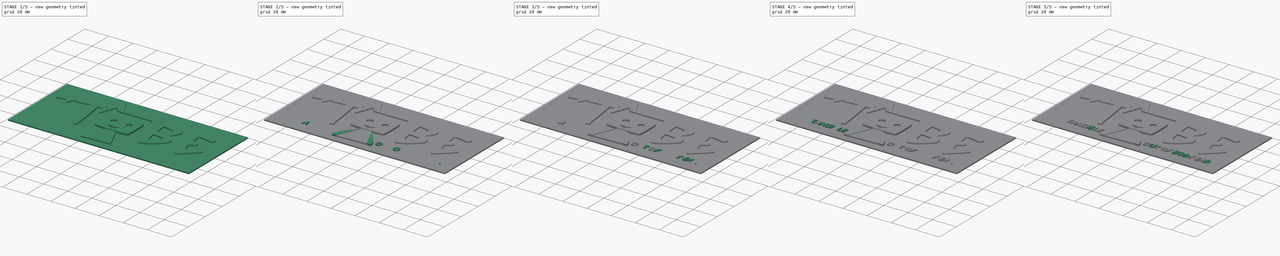
[diagram: build sequence overview — one tinted view per stage of 5, left to right]
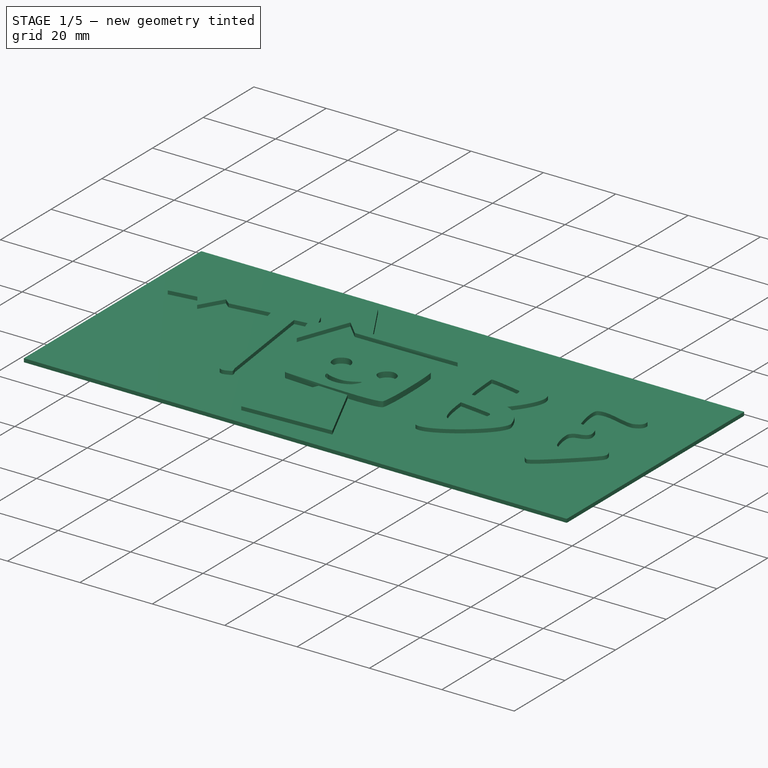
[diagram: stage 1 of 5 — iso view after this stage's code; geometry added in this stage tinted green]
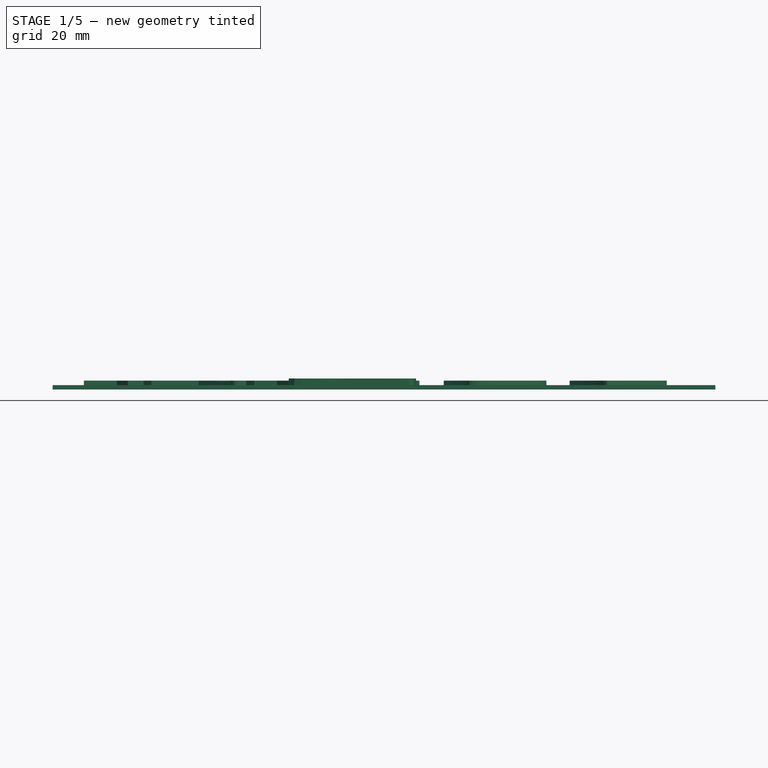
[diagram: stage 1 of 5 — front view after this stage's code; geometry added in this stage tinted green]
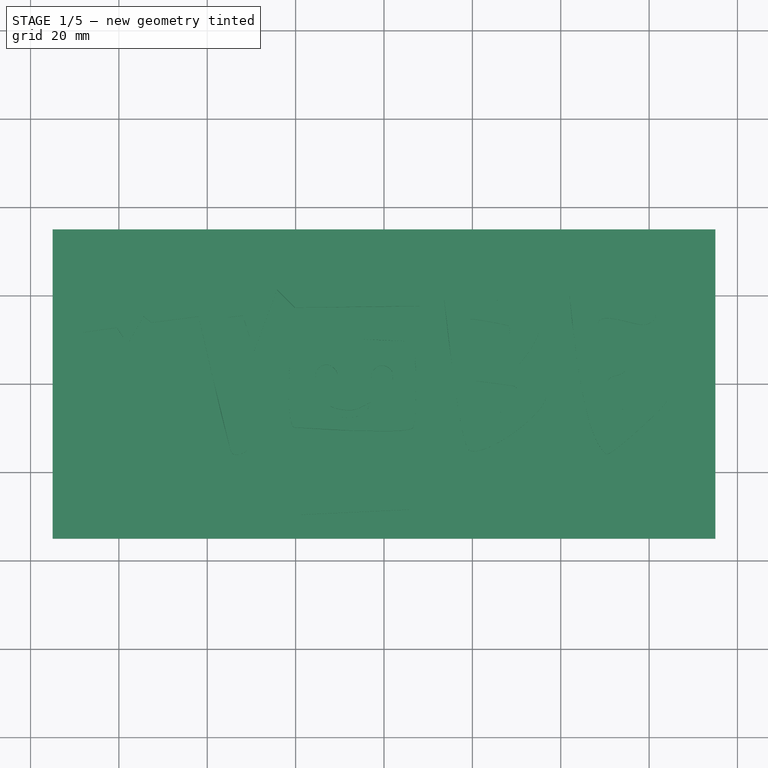
[diagram: stage 1 of 5 — top view after this stage's code; geometry added in this stage tinted green]
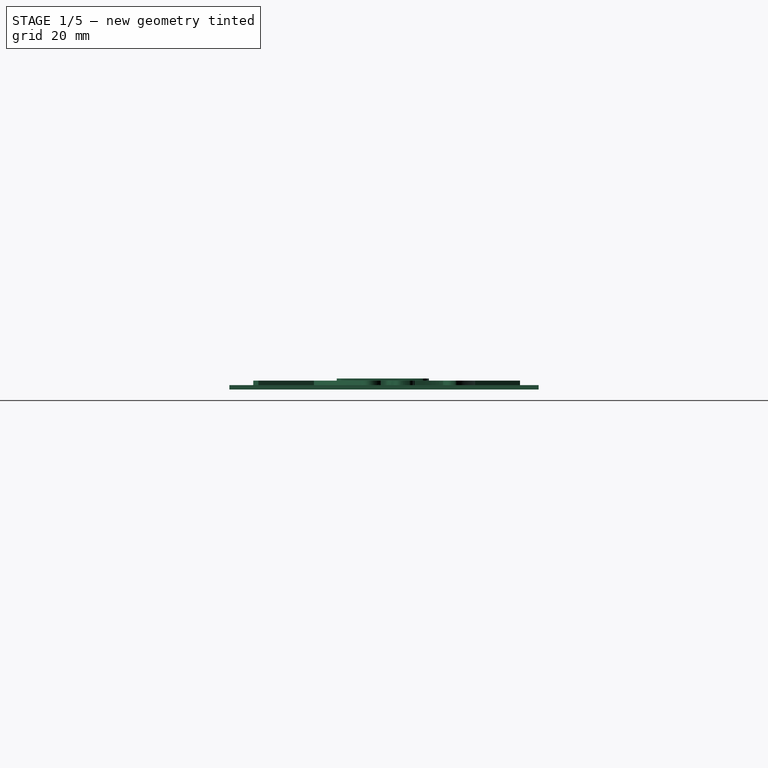
[diagram: stage 1 of 5 — right view after this stage's code; geometry added in this stage tinted green]
FCSTD DOCUMENT  (FreeCAD 0.14R3702 (Git))
Label: logo_support
License: CC-BY 3.0
LicenseURL: http://creativecommons.org/licenses/by/3.0/
objects: Part::Feature×43, Part::Extrusion×28, Part::MultiFuse×10, Sketcher::SketchObject×1, PartDesign::Pad×1
note: 84 computed .brp shape members not serialized (recipe doc carries the construction recipe); baked Part::Feature solids carry a one-line shape summary decoded from their .brp

FEATURE [Part::Extrusion] Extrude023
  Base = -> path3032
  Dir = (0,0,1)
  Placement = pos=(-109,104,0) rot=(0,0,1;0rad)
  Solid = true
FEATURE [Part::MultiFuse] Fusion008
  Shapes = -> [path3027,path3028,path3030]
FEATURE [Part::Extrusion] Extrude024
  Base = -> Fusion008
  Dir = (0,0,1)
  Placement = pos=(-109,104,0) rot=(0,0,1;0rad)
  Solid = true
FEATURE [Part::Extrusion] Extrude025
  Base = -> path3006
  Dir = (0,0,1)
  Placement = pos=(-109,104,0) rot=(0,0,1;0rad)
  Solid = true
FEATURE [Part::Extrusion] Extrude026
  Base = -> path3089
  Dir = (0,0,1)
  Placement = pos=(-109,104,0) rot=(0,0,1;0rad)
  Solid = true
FEATURE [Part::MultiFuse] Fusion009
  Shapes = -> [path3045,path3047_9,path3087,path3047]
FEATURE [Part::Extrusion] Extrude027
  Base = -> Fusion009
  Dir = (0,0,1.5)
  Placement = pos=(-109,104,0) rot=(0,0,1;0rad)
  Solid = true
FEATURE [Sketcher::SketchObject] Sketch001  label="cover"
  sketch-geometry (4):
    g0: LineSegment StartX=-75 StartY=35 StartZ=0 EndX=75 EndY=35 EndZ=0
    g1: LineSegment StartX=75 StartY=35 StartZ=0 EndX=75 EndY=-35 EndZ=0
    g2: LineSegment StartX=75 StartY=-35 StartZ=0 EndX=-75 EndY=-35 EndZ=0
    g3: LineSegment StartX=-75 StartY=-35 StartZ=0 EndX=-75 EndY=35 EndZ=0
  constraints (12):
    c: Coincident(g0,g1)
    c: Coincident(g1,g2)
    c: Coincident(g2,g3)
    c: Coincident(g3,g0)
    c: Horizontal(g0)
    c: Horizontal(g2)
    c: Vertical(g1)
    c: Vertical(g3)
    c: Symmetric(g0,g0,g-2)
    c: Symmetric(g0,g2,g-1)
    c: Distance(g3) = 70
    c: Distance(g0) = 150
FEATURE [PartDesign::Pad] Pad
  Length = 1
  Length2 = 100
  Reversed = true
  Sketch = -> Sketch001
  Type = 0
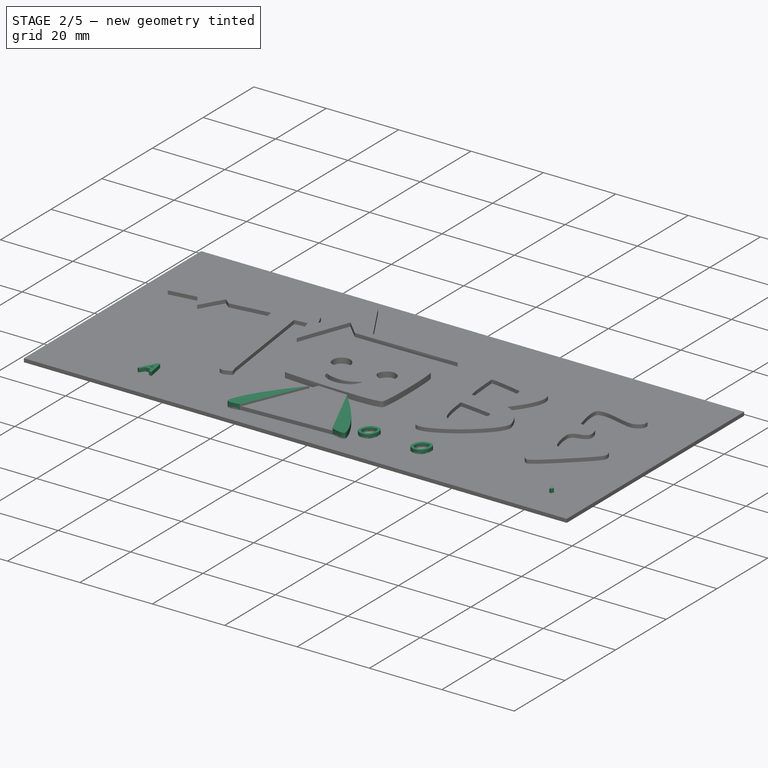
[diagram: stage 2 of 5 — iso view after this stage's code; geometry added in this stage tinted green]
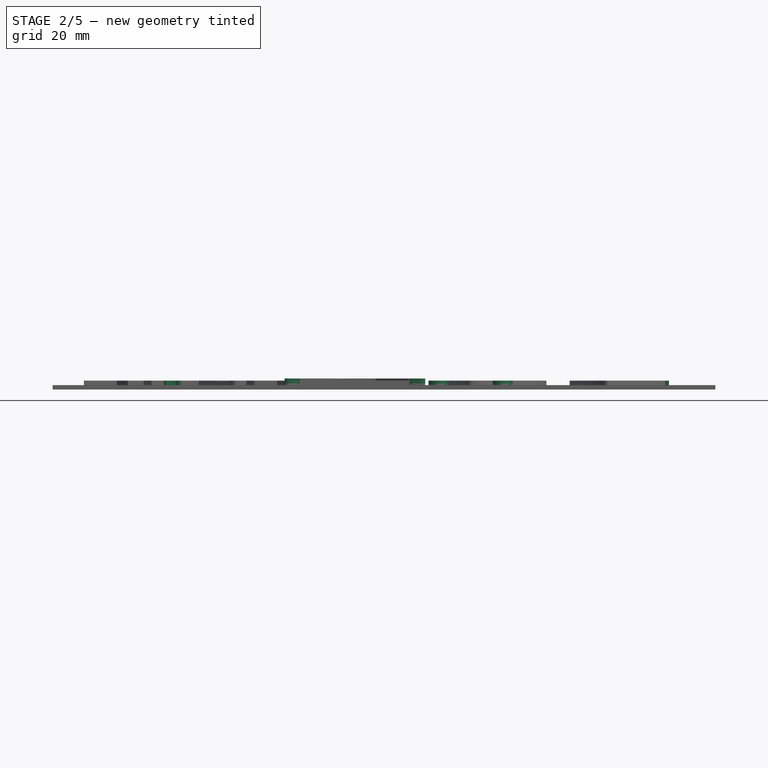
[diagram: stage 2 of 5 — front view after this stage's code; geometry added in this stage tinted green]
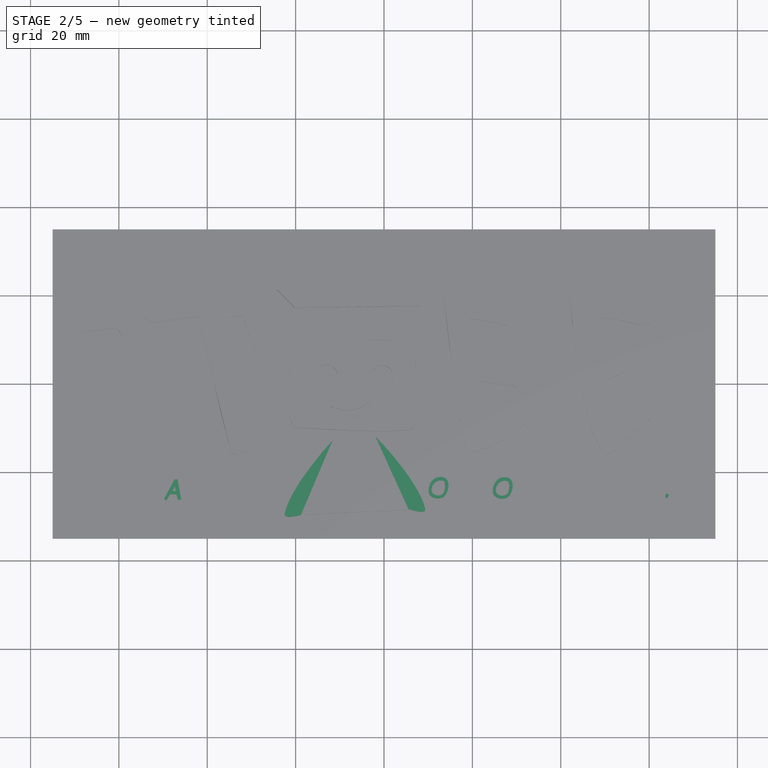
[diagram: stage 2 of 5 — top view after this stage's code; geometry added in this stage tinted green]
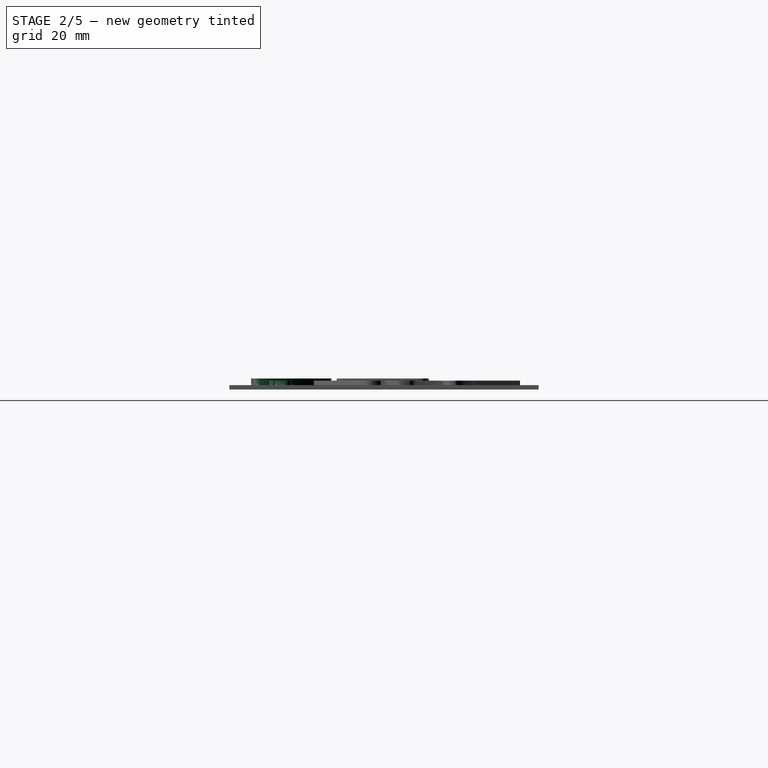
[diagram: stage 2 of 5 — right view after this stage's code; geometry added in this stage tinted green]
FEATURE [Part::Extrusion] Extrude017
  Base = -> path3350
  Dir = (0,0,1)
  Placement = pos=(-109,104,0) rot=(0,0,1;0rad)
  Solid = true
FEATURE [Part::Extrusion] Extrude018
  Base = -> Fusion005
  Dir = (0,0,1)
  Placement = pos=(-109,104,0) rot=(0,0,1;0rad)
  Solid = true
FEATURE [Part::Extrusion] Extrude019
  Base = -> Fusion006
  Dir = (0,0,1)
  Placement = pos=(-109,104,0) rot=(0,0,1;0rad)
  Solid = true
FEATURE [Part::Extrusion] Extrude020
  Base = -> Fusion007
  Dir = (0,0,1)
  Placement = pos=(-109,104,0) rot=(0,0,1;0rad)
  Solid = true
FEATURE [Part::Extrusion] Extrude021
  Base = -> path3091
  Dir = (0,0,1.5)
  Placement = pos=(-109,104,0) rot=(0,0,1;0rad)
  Solid = true
FEATURE [Part::Extrusion] Extrude022
  Base = -> path3091_9
  Dir = (0,0,1.5)
  Placement = pos=(-109,104,0) rot=(0,0,1;0rad)
  Solid = true
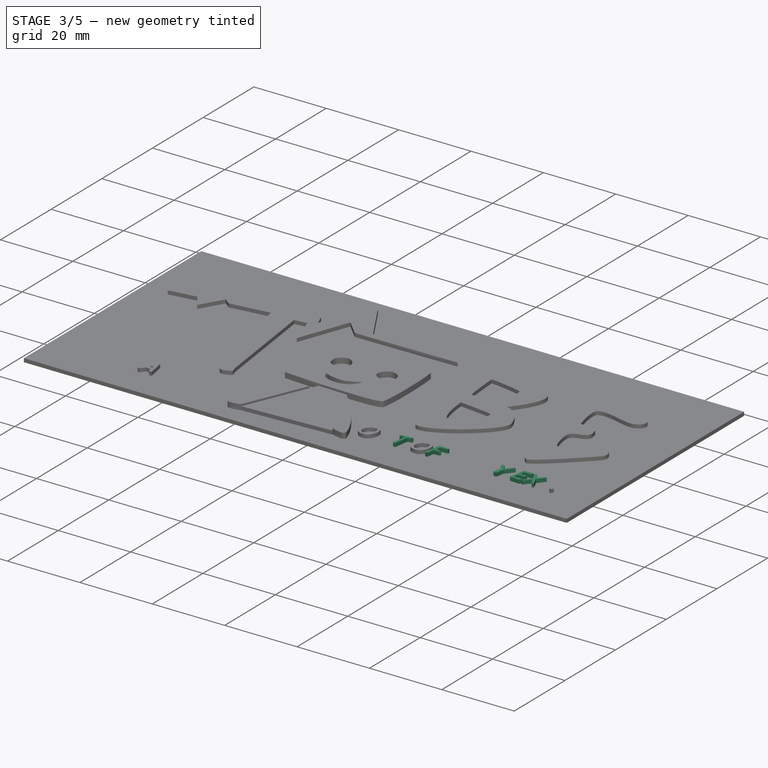
[diagram: stage 3 of 5 — iso view after this stage's code; geometry added in this stage tinted green]
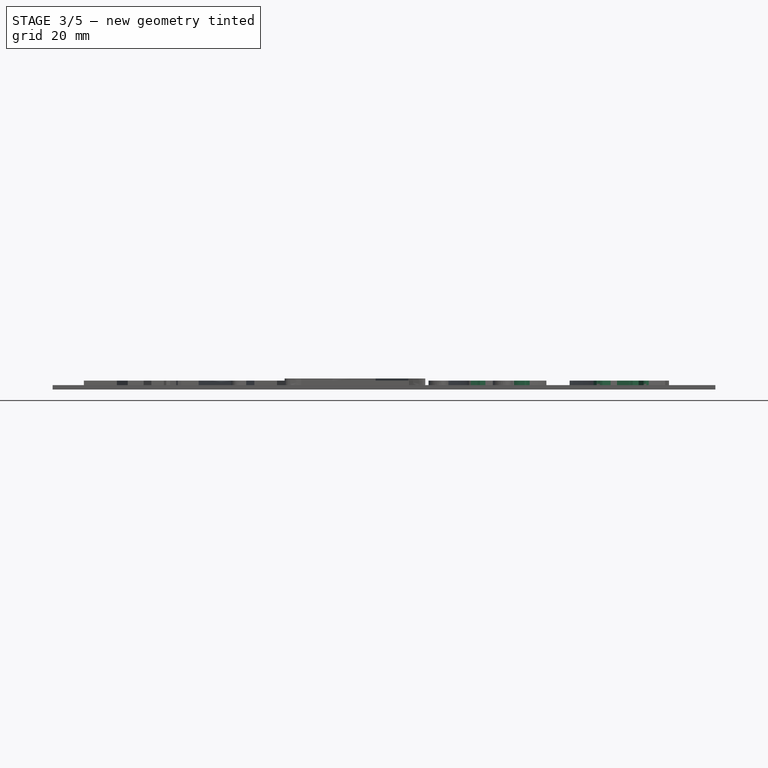
[diagram: stage 3 of 5 — front view after this stage's code; geometry added in this stage tinted green]
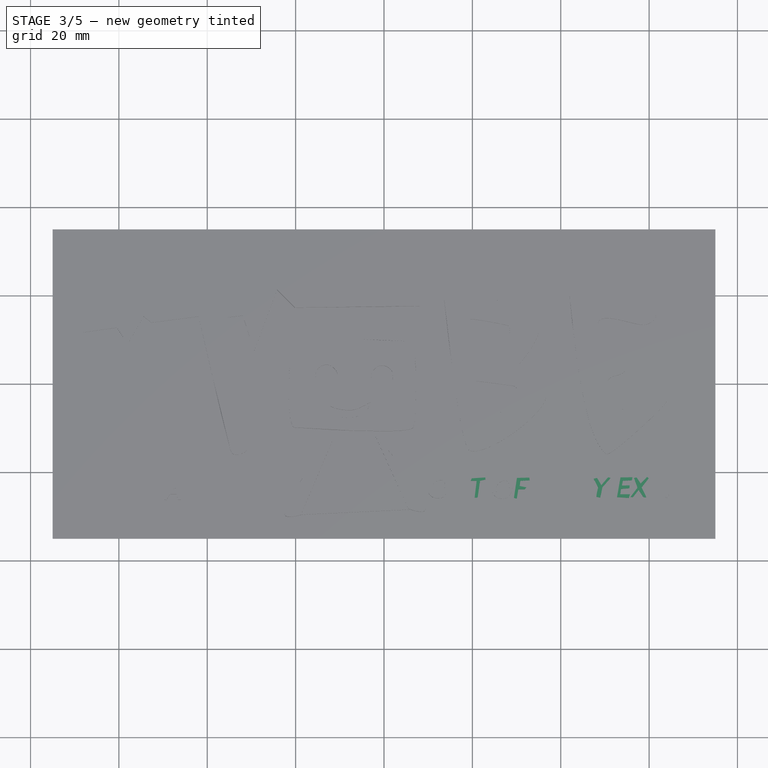
[diagram: stage 3 of 5 — top view after this stage's code; geometry added in this stage tinted green]
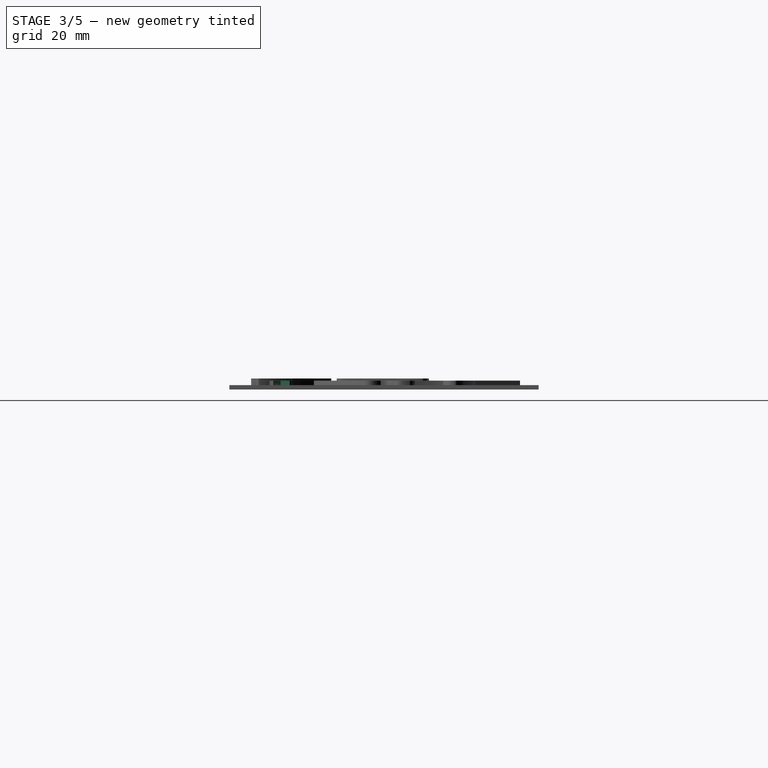
[diagram: stage 3 of 5 — right view after this stage's code; geometry added in this stage tinted green]
FEATURE [Part::Extrusion] Extrude012
  Base = -> path3157_8
  Dir = (0,0,1)
  Placement = pos=(-109,104,0) rot=(0,0,1;0rad)
  Solid = true
FEATURE [Part::Extrusion] Extrude013
  Base = -> path3177_6
  Dir = (0,0,1)
  Placement = pos=(-109,104,0) rot=(0,0,1;0rad)
  Solid = true
FEATURE [Part::Extrusion] Extrude014
  Base = -> path3344
  Dir = (0,0,1)
  Placement = pos=(-109,104,0) rot=(0,0,1;0rad)
  Solid = true
FEATURE [Part::Extrusion] Extrude015
  Base = -> path3346
  Dir = (0,0,1)
  Placement = pos=(-109,104,0) rot=(0,0,1;0rad)
  Solid = true
FEATURE [Part::Extrusion] Extrude016
  Base = -> path3348
  Dir = (0,0,1)
  Placement = pos=(-109,104,0) rot=(0,0,1;0rad)
  Solid = true
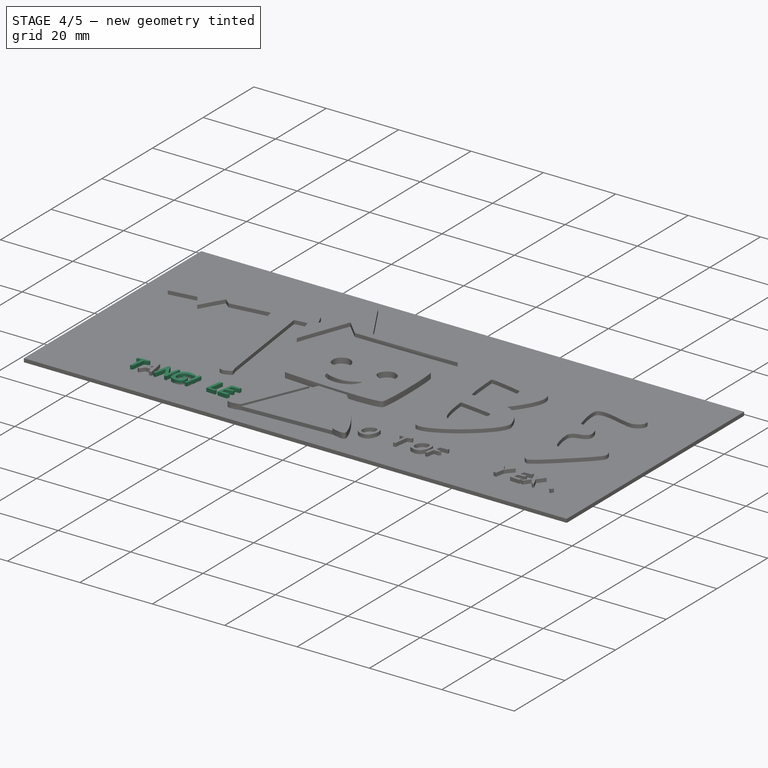
[diagram: stage 4 of 5 — iso view after this stage's code; geometry added in this stage tinted green]
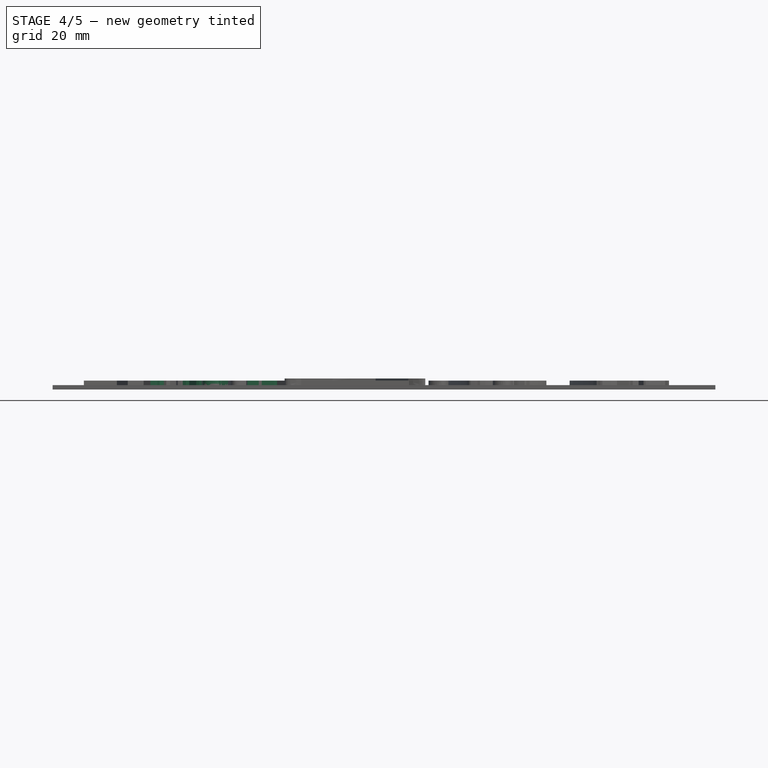
[diagram: stage 4 of 5 — front view after this stage's code; geometry added in this stage tinted green]
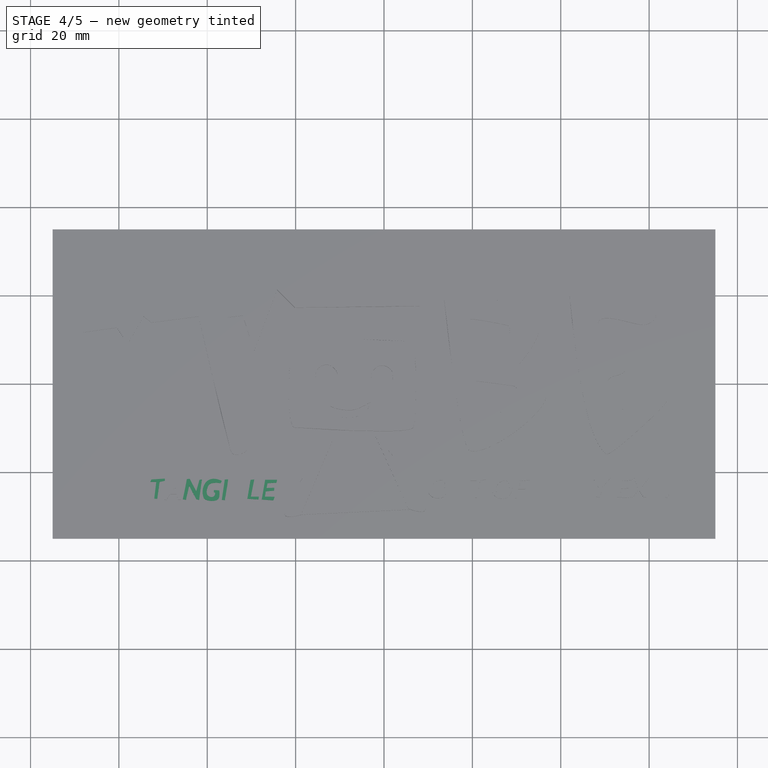
[diagram: stage 4 of 5 — top view after this stage's code; geometry added in this stage tinted green]
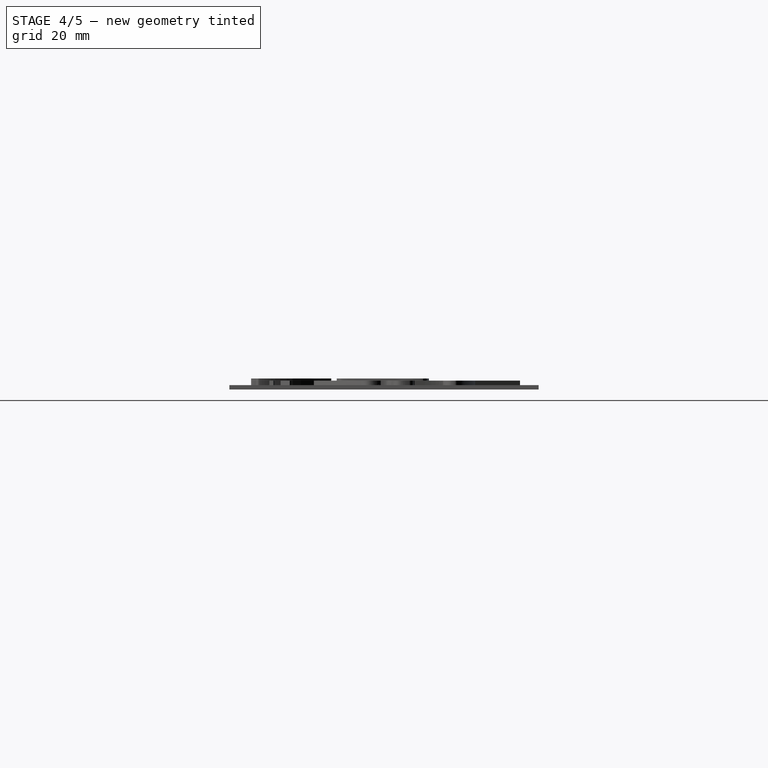
[diagram: stage 4 of 5 — right view after this stage's code; geometry added in this stage tinted green]
FEATURE [Part::MultiFuse] Fusion005
  Shapes = -> [path3189_6,path3191_2]
FEATURE [Part::MultiFuse] Fusion006
  Shapes = -> [path3189,path3191]
FEATURE [Part::MultiFuse] Fusion007
  Shapes = -> [path3161,path3159]
FEATURE [Part::Extrusion] Extrude006
  Base = -> path3157
  Dir = (0,0,1)
  Placement = pos=(-109,104,0) rot=(0,0,1;0rad)
  Solid = true
FEATURE [Part::Extrusion] Extrude007
  Base = -> path3163
  Dir = (0,0,1)
  Placement = pos=(-109,104,0) rot=(0,0,1;0rad)
  Solid = true
FEATURE [Part::Extrusion] Extrude008
  Base = -> path3165
  Dir = (0,0,1)
  Placement = pos=(-109,104,0) rot=(0,0,1;0rad)
  Solid = true
FEATURE [Part::Extrusion] Extrude009
  Base = -> path3167
  Dir = (0,0,1)
  Placement = pos=(-109,104,0) rot=(0,0,1;0rad)
  Solid = true
FEATURE [Part::Extrusion] Extrude010
  Base = -> path3175
  Dir = (0,0,1)
  Placement = pos=(-109,104,0) rot=(0,0,1;0rad)
  Solid = true
FEATURE [Part::Extrusion] Extrude011
  Base = -> path3177
  Dir = (0,0,1)
  Placement = pos=(-109,104,0) rot=(0,0,1;0rad)
  Solid = true
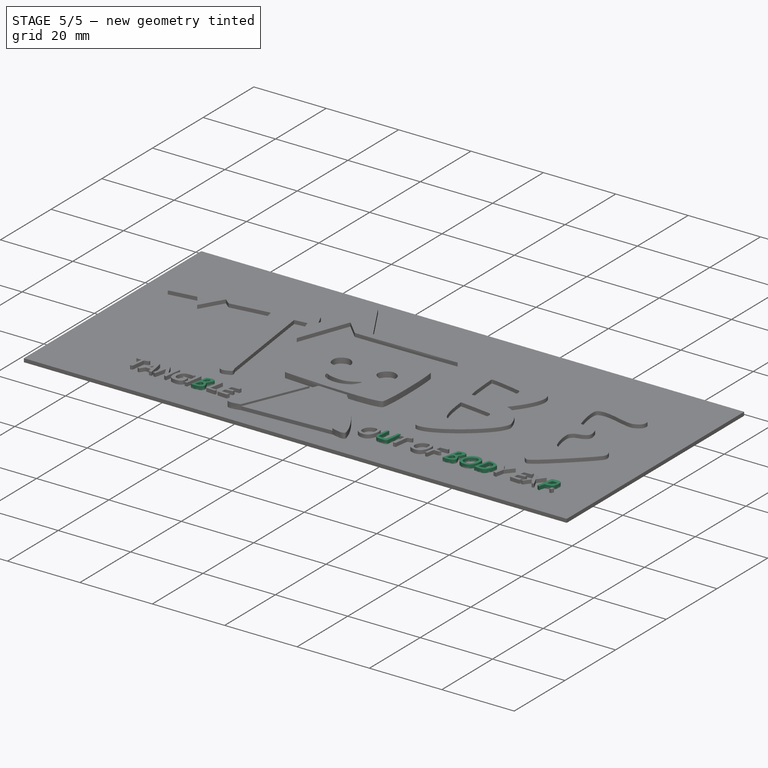
[diagram: stage 5 of 5 — iso view after this stage's code; geometry added in this stage tinted green]
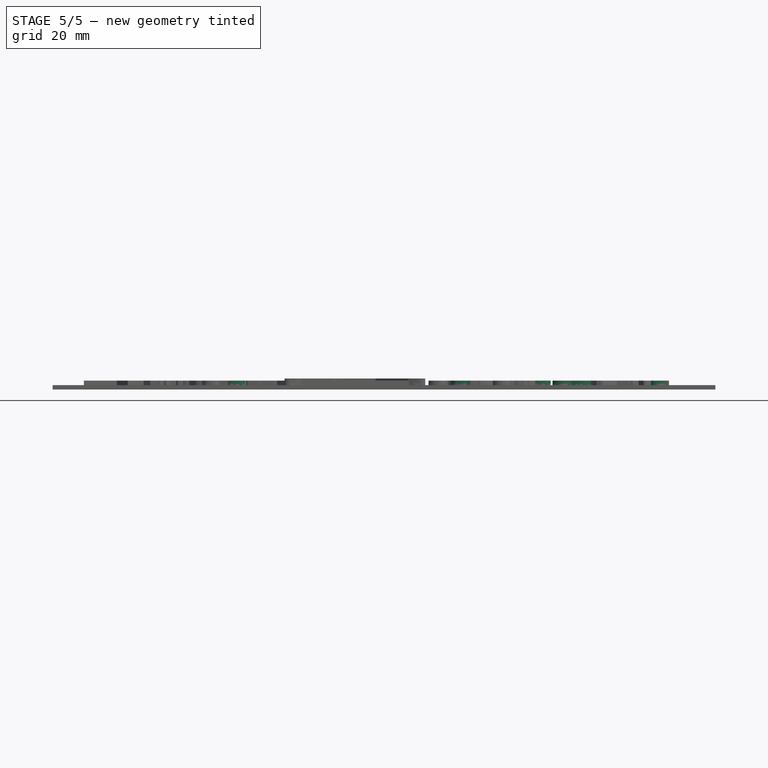
[diagram: stage 5 of 5 — front view after this stage's code; geometry added in this stage tinted green]
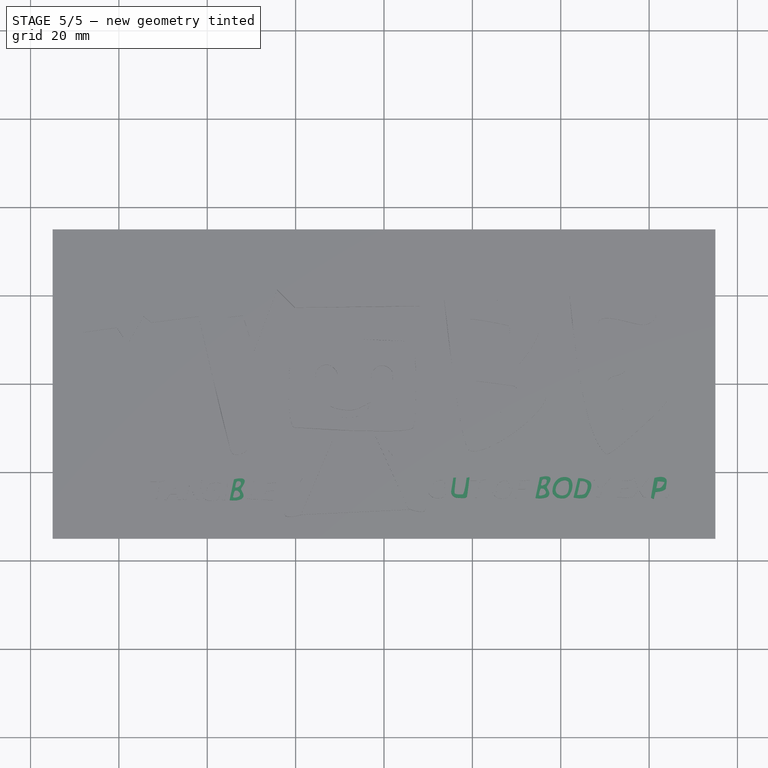
[diagram: stage 5 of 5 — top view after this stage's code; geometry added in this stage tinted green]
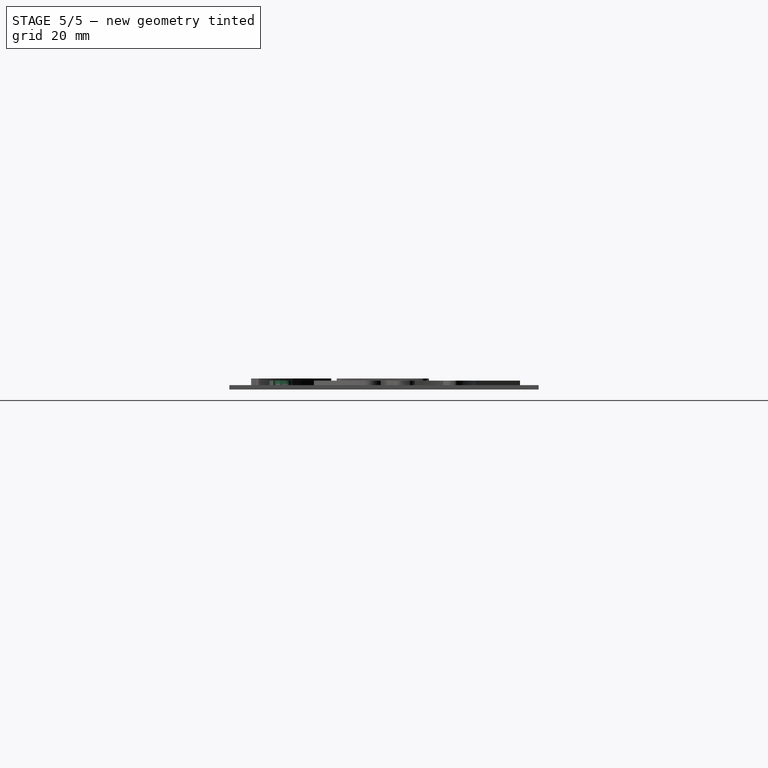
[diagram: stage 5 of 5 — right view after this stage's code; geometry added in this stage tinted green]
FEATURE [Part::Feature] path3047
  shape: bbox 5.244 x 4.925 x 2e-07 mm, 0 faces, 0 solids (baked)
FEATURE [Part::Feature] path3047_9
  shape: bbox 5.244 x 4.925 x 2e-07 mm, 0 faces, 0 solids (baked)
FEATURE [Part::Feature] path3087
  shape: bbox 9.47 x 3.845 x 2e-07 mm, 0 faces, 0 solids (baked)
FEATURE [Part::Feature] path3089
  shape: bbox 24.36 x 19.05 x 2e-07 mm, 0 faces, 0 solids (baked)
FEATURE [Part::Feature] path3006
  shape: bbox 22.61 x 37.39 x 2e-07 mm, 0 faces, 0 solids (baked)
FEATURE [Part::Feature] path3027
  shape: bbox 24.41 x 37.17 x 2e-07 mm, 0 faces, 0 solids (baked)
FEATURE [Part::Feature] path3028
  shape: bbox 9.217 x 9.676 x 2e-07 mm, 0 faces, 0 solids (baked)
FEATURE [Part::Feature] path3030
  shape: bbox 9.366 x 9.176 x 2e-07 mm, 0 faces, 0 solids (baked)
FEATURE [Part::Feature] path3032
  shape: bbox 75.92 x 47.14 x 2e-07 mm, 0 faces, 0 solids (baked)
FEATURE [Part::Feature] path3045
  shape: bbox 29.87 x 22.72 x 2e-07 mm, 0 faces, 0 solids (baked)
FEATURE [Part::Feature] path3091
  shape: bbox 11.25 x 17.79 x 2e-07 mm, 0 faces, 0 solids (baked)
FEATURE [Part::Feature] path3091_9
  shape: bbox 11.6 x 17.51 x 2e-07 mm, 0 faces, 0 solids (baked)
FEATURE [Part::Feature] path3157
  shape: bbox 3.301 x 4.561 x 2e-07 mm, 0 faces, 0 solids (baked)
FEATURE [Part::Feature] path3159
  shape: bbox 3.931 x 4.687 x 2e-07 mm, 0 faces, 0 solids (baked)
FEATURE [Part::Feature] path3161
  shape: bbox 0.9071 x 1.058 x 2e-07 mm, 0 faces, 0 solids (baked)
FEATURE [Part::Feature] path3163
  shape: bbox 4.334 x 4.813 x 2e-07 mm, 0 faces, 0 solids (baked)
FEATURE [Part::Feature] path3165
  shape: bbox 4.511 x 5.289 x 2e-07 mm, 0 faces, 0 solids (baked)
FEATURE [Part::Feature] path3167
  shape: bbox 1.479 x 4.757 x 2e-07 mm, 0 faces, 0 solids (baked)
FEATURE [Part::Feature] path3175
  shape: bbox 2.584 x 4.544 x 2e-07 mm, 0 faces, 0 solids (baked)
FEATURE [Part::Feature] path3177
  shape: bbox 3.492 x 4.668 x 2e-07 mm, 0 faces, 0 solids (baked)
FEATURE [Part::Feature] path3189
  shape: bbox 3.226 x 3.669 x 2e-07 mm, 0 faces, 0 solids (baked)
FEATURE [Part::Feature] path3191
  shape: bbox 4.766 x 5.068 x 2e-07 mm, 0 faces, 0 solids (baked)
FEATURE [Part::Feature] path3189_6
  shape: bbox 3.226 x 3.669 x 2e-07 mm, 0 faces, 0 solids (baked)
FEATURE [Part::Feature] path3191_2
  shape: bbox 4.766 x 5.068 x 2e-07 mm, 0 faces, 0 solids (baked)
FEATURE [Part::Feature] path3189_6_8
  shape: bbox 3.226 x 3.669 x 2e-07 mm, 0 faces, 0 solids (baked)
FEATURE [Part::Feature] path3191_2_7
  shape: bbox 4.766 x 5.068 x 2e-07 mm, 0 faces, 0 solids (baked)
FEATURE [Part::Feature] path3157_8
  shape: bbox 3.301 x 4.561 x 2e-07 mm, 0 faces, 0 solids (baked)
FEATURE [Part::Feature] path3169_9
  shape: bbox 3.645 x 5.388 x 2e-07 mm, 0 faces, 0 solids (baked)
FEATURE [Part::Feature] path3171_3
  shape: bbox 1.366 x 1.595 x 2e-07 mm, 0 faces, 0 solids (baked)
FEATURE [Part::Feature] path3173_0
  shape: bbox 1.891 x 1.937 x 2e-07 mm, 0 faces, 0 solids (baked)
FEATURE [Part::Feature] path3169_9_2
  shape: bbox 3.645 x 5.388 x 2e-07 mm, 0 faces, 0 solids (baked)
FEATURE [Part::Feature] path3171_3_4
  shape: bbox 1.366 x 1.595 x 2e-07 mm, 0 faces, 0 solids (baked)
FEATURE [Part::Feature] path3173_0_5
  shape: bbox 1.891 x 1.937 x 2e-07 mm, 0 faces, 0 solids (baked)
FEATURE [Part::Feature] path3177_6
  shape: bbox 3.492 x 4.668 x 2e-07 mm, 0 faces, 0 solids (baked)
FEATURE [Part::Feature] path3344
  shape: bbox 3.564 x 4.74 x 2e-07 mm, 0 faces, 0 solids (baked)
FEATURE [Part::Feature] path3346
  shape: bbox 3.849 x 4.633 x 2e-07 mm, 0 faces, 0 solids (baked)
FEATURE [Part::Feature] path3348
  shape: bbox 4.134 x 4.682 x 2e-07 mm, 0 faces, 0 solids (baked)
FEATURE [Part::Feature] path3350
  shape: bbox 0.8909 x 0.9622 x 2e-07 mm, 0 faces, 0 solids (baked)
FEATURE [Part::Feature] path3352
  shape: bbox 3.705 x 5.144 x 2e-07 mm, 0 faces, 0 solids (baked)
FEATURE [Part::Feature] path3354
  shape: bbox 1.949 x 1.639 x 2e-07 mm, 0 faces, 0 solids (baked)
FEATURE [Part::Feature] path3360
  shape: bbox 4.183 x 4.84 x 2e-07 mm, 0 faces, 0 solids (baked)
FEATURE [Part::Feature] path3362
  shape: bbox 4.191 x 4.86 x 2e-07 mm, 0 faces, 0 solids (baked)
FEATURE [Part::Feature] path3364
  shape: bbox 2.462 x 3.332 x 2e-07 mm, 0 faces, 0 solids (baked)
FEATURE [Part::MultiFuse] Fusion
  Shapes = -> [path3362,path3364]
FEATURE [Part::Extrusion] Extrude
  Base = -> Fusion
  Dir = (0,0,1)
  Placement = pos=(-109,104,0) rot=(0,0,1;0rad)
  Solid = true
FEATURE [Part::Extrusion] Extrude001
  Base = -> path3360
  Dir = (0,0,1)
  Placement = pos=(-109,104,0) rot=(0,0,1;0rad)
  Solid = true
FEATURE [Part::MultiFuse] Fusion001
  Shapes = -> [path3354,path3352]
FEATURE [Part::Extrusion] Extrude002
  Base = -> Fusion001
  Dir = (0,0,1)
  Placement = pos=(-109,104,0) rot=(0,0,1;0rad)
  Solid = true
FEATURE [Part::MultiFuse] Fusion002
  Shapes = -> [path3171_3_4,path3169_9_2,path3173_0_5]
FEATURE [Part::Extrusion] Extrude003
  Base = -> Fusion002
  Dir = (0,0,1)
  Placement = pos=(-109,104,0) rot=(0,0,1;0rad)
  Solid = true
FEATURE [Part::MultiFuse] Fusion003
  Shapes = -> [path3169_9,path3171_3,path3173_0]
FEATURE [Part::Extrusion] Extrude004
  Base = -> Fusion003
  Dir = (0,0,1)
  Placement = pos=(-109,104,0) rot=(0,0,1;0rad)
  Solid = true
FEATURE [Part::MultiFuse] Fusion004
  Shapes = -> [path3189_6_8,path3191_2_7]
FEATURE [Part::Extrusion] Extrude005
  Base = -> Fusion004
  Dir = (0,0,1)
  Placement = pos=(-109,104,0) rot=(0,0,1;0rad)
  Solid = true
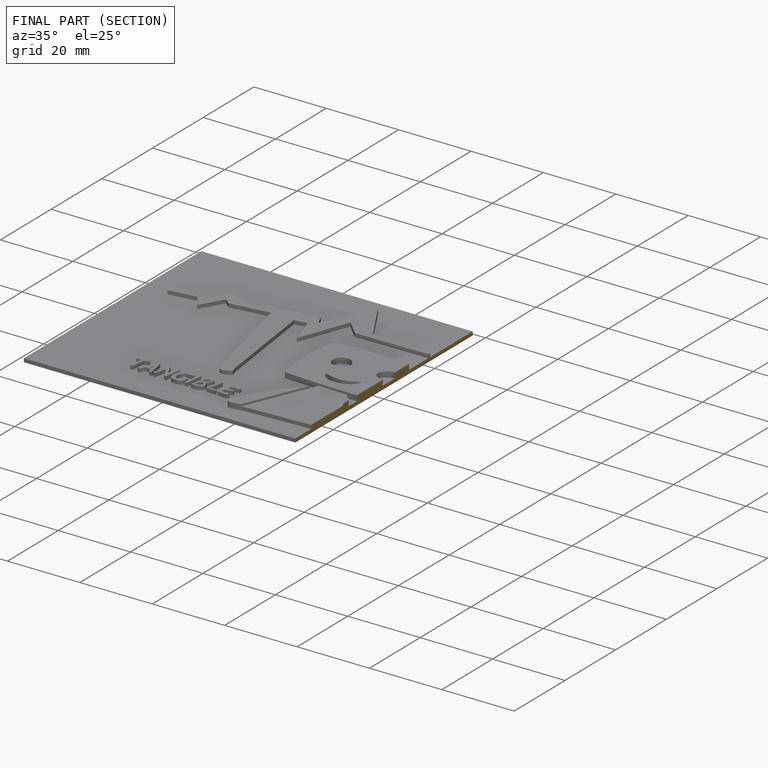
[diagram: finished part — half-section view (interior)]
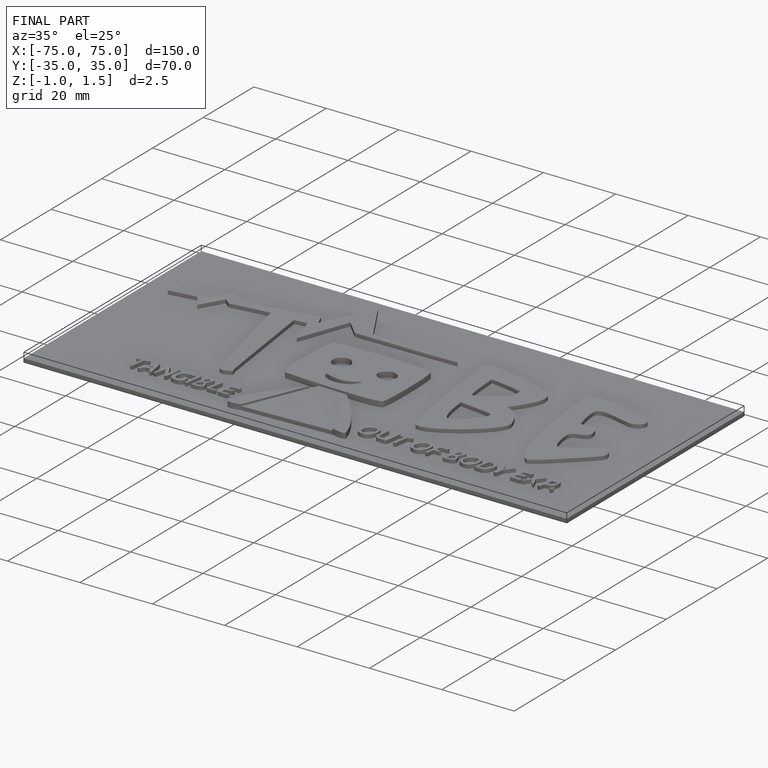
[diagram: finished part — iso view with bounding-box wireframe]
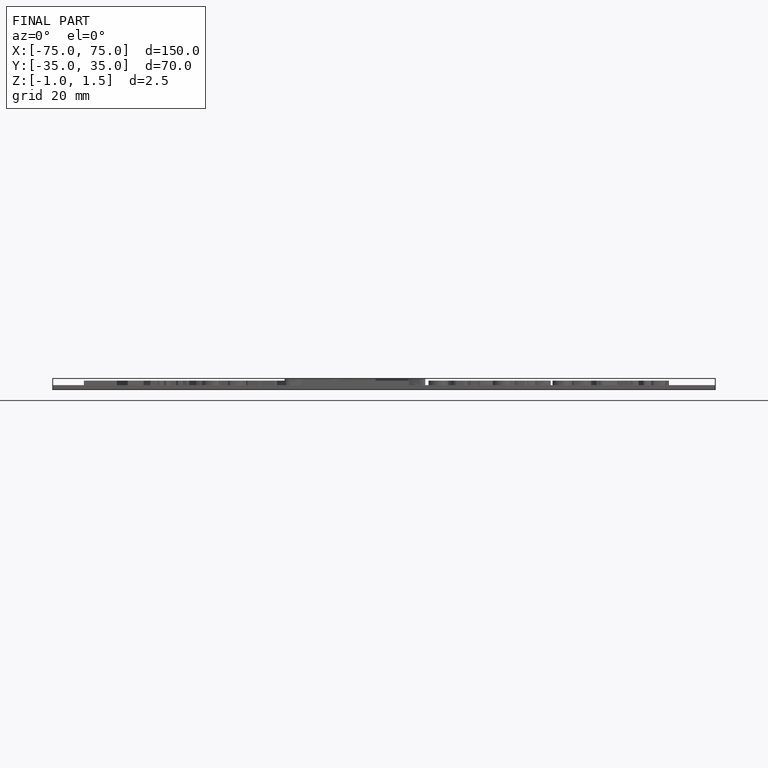
[diagram: finished part — front view with bounding-box wireframe]
